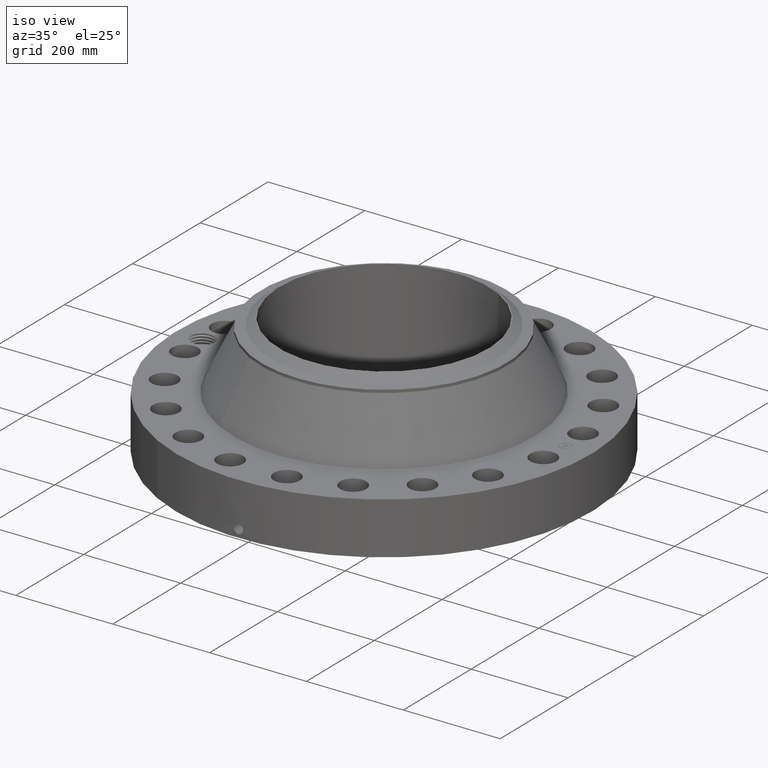
[diagram: clean part render]
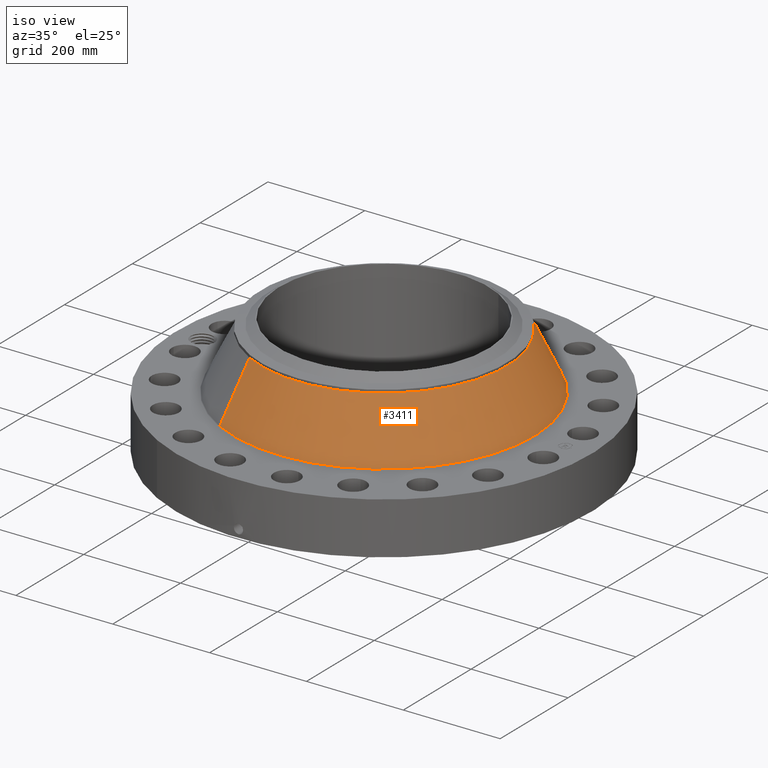
[diagram: same view with one face highlighted and labeled with its STEP entity id]
A machine part, iso view. The second image highlights one B-rep face of the part: STEP entity #3411.
In plain terms, the highlighted conical surface has half-angle 25.978 deg.
Its self-contained STEP definition (entity closure, byte-faithful):
#2622=AXIS2_PLACEMENT_3D('Circle Axis2P3D',#2620,#2621,$) ;
#3384=AXIS2_PLACEMENT_3D('Cone Axis2P3D',#3381,#3382,#3383) ;
#3395=AXIS2_PLACEMENT_3D('Circle Axis2P3D',#3393,#3394,$) ;
#2617=CARTESIAN_POINT('Vertex',(5.85720927136,10.7215496547,4.56743631846)) ;
#2620=CARTESIAN_POINT('Axis2P3D Location',(0.,0.,4.56743631846)) ;
#2624=CARTESIAN_POINT('Vertex',(-5.85720927136,-10.7215496547,4.56743631846)) ;
#3381=CARTESIAN_POINT('Axis2P3D Location',(0.,0.,9.1176218848)) ;
#3386=CARTESIAN_POINT('Line Origine',(5.32573232871,9.74868763683,6.84252910163)) ;
#3390=CARTESIAN_POINT('Vertex',(4.79425538606,8.77582561894,9.1176218848)) ;
#3393=CARTESIAN_POINT('Axis2P3D Location',(0.,0.,9.1176218848)) ;
#3397=CARTESIAN_POINT('Vertex',(-4.79425538606,-8.77582561894,9.1176218848)) ;
#3400=CARTESIAN_POINT('Line Origine',(-5.32573232871,-9.74868763683,6.84252910163)) ;
#2621=DIRECTION('Axis2P3D Direction',(0.,0.,-0.0393700787402)) ;
#3382=DIRECTION('Axis2P3D Direction',(0.,0.,-0.0393700787402)) ;
#3383=DIRECTION('Axis2P3D XDirection',(-0.0188750212049,-0.0345504945626,0.)) ;
#3387=DIRECTION('Vector Direction',(0.00826783836718,0.0151341766162,-0.0353921269054)) ;
#3394=DIRECTION('Axis2P3D Direction',(0.,0.,-0.0393700787402)) ;
#3401=DIRECTION('Vector Direction',(-0.00826783836718,-0.0151341766162,-0.0353921269054)) ;
#3388=VECTOR('Line Direction',#3387,0.0393700787402) ;
#3402=VECTOR('Line Direction',#3401,0.0393700787402) ;
#3406=ORIENTED_EDGE('',*,*,#2626,.F.) ;
#3407=ORIENTED_EDGE('',*,*,#3392,.T.) ;
#3408=ORIENTED_EDGE('',*,*,#3399,.T.) ;
#3409=ORIENTED_EDGE('',*,*,#3404,.F.) ;
#3411=ADVANCED_FACE('PartBody',(#3410),#3385,.T.) ;
#2623=CIRCLE('generated circle',#2622,12.2171407231) ;
#3396=CIRCLE('generated circle',#3395,10.) ;
#3385=CONICAL_SURFACE('Cone',#3384,10.,0.45340683612) ;
#2626=EDGE_CURVE('',#2618,#2625,#2623,.T.) ;
#3392=EDGE_CURVE('',#2618,#3391,#3389,.F.) ;
#3399=EDGE_CURVE('',#3391,#3398,#3396,.T.) ;
#3404=EDGE_CURVE('',#2625,#3398,#3403,.F.) ;
#3405=EDGE_LOOP('',(#3406,#3407,#3408,#3409)) ;
#3410=FACE_OUTER_BOUND('',#3405,.T.) ;
#3389=LINE('Line',#3386,#3388) ;
#3403=LINE('Line',#3400,#3402) ;
#2618=VERTEX_POINT('',#2617) ;
#2625=VERTEX_POINT('',#2624) ;
#3391=VERTEX_POINT('',#3390) ;
#3398=VERTEX_POINT('',#3397) ;